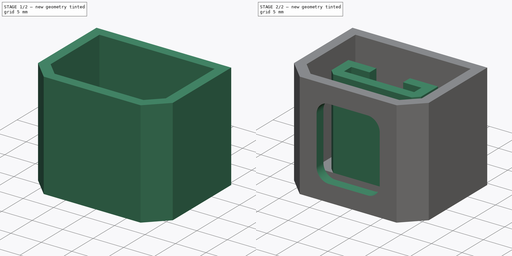
[diagram: build sequence overview — one tinted view per stage of 2, left to right]
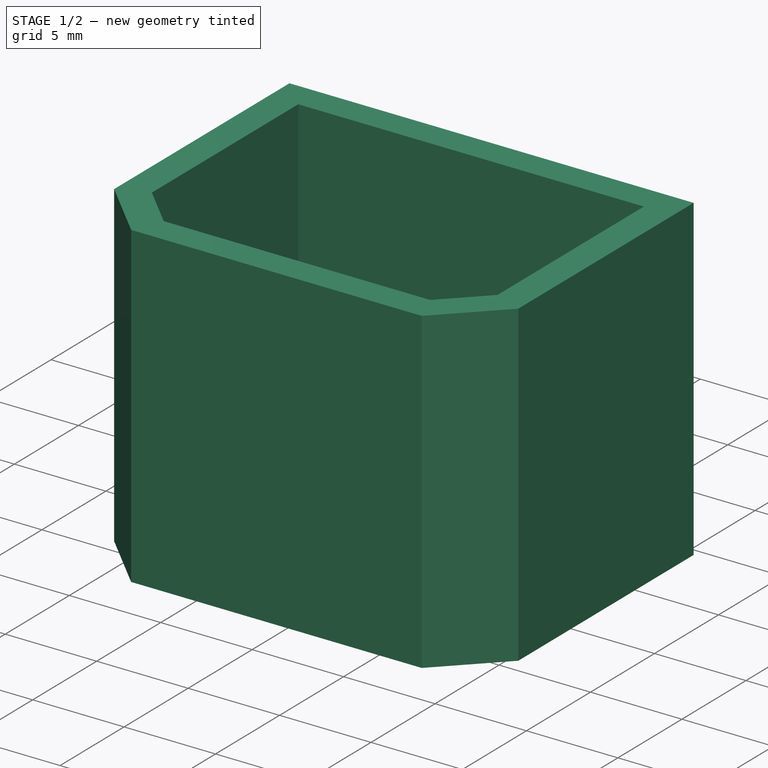
[diagram: stage 1 of 2 — iso view after this stage's code; geometry added in this stage tinted green]
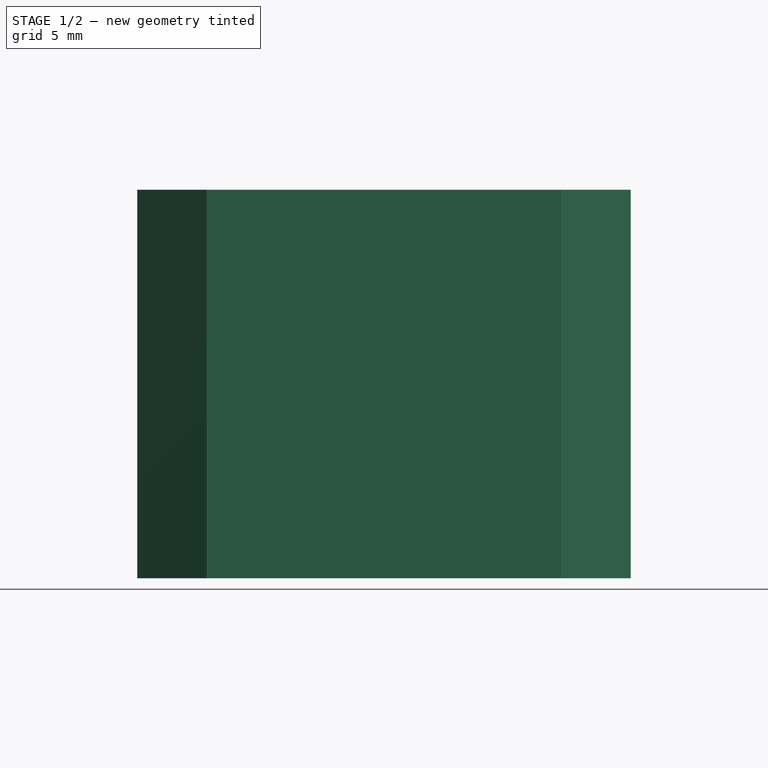
[diagram: stage 1 of 2 — front view after this stage's code; geometry added in this stage tinted green]
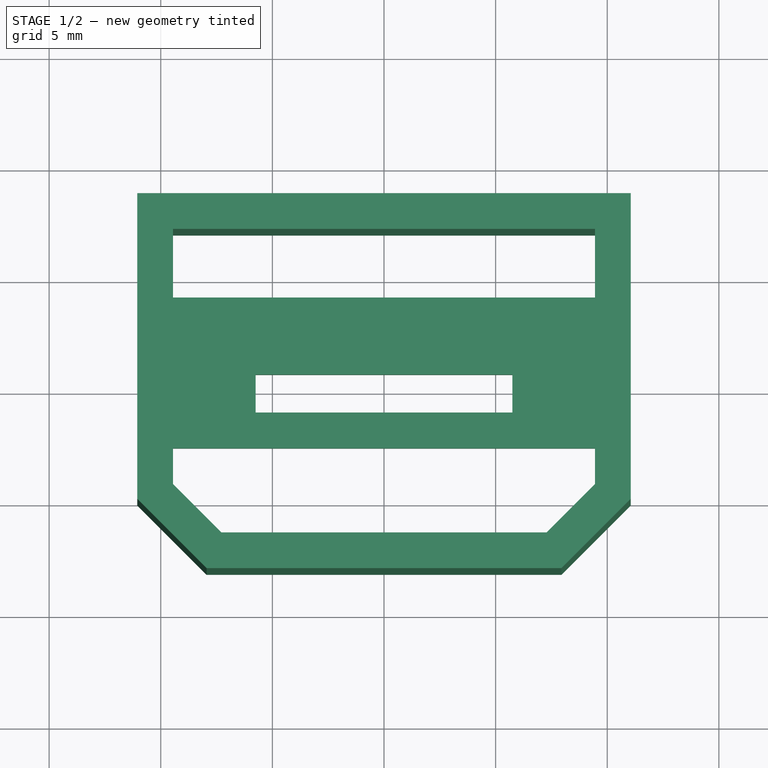
[diagram: stage 1 of 2 — top view after this stage's code; geometry added in this stage tinted green]
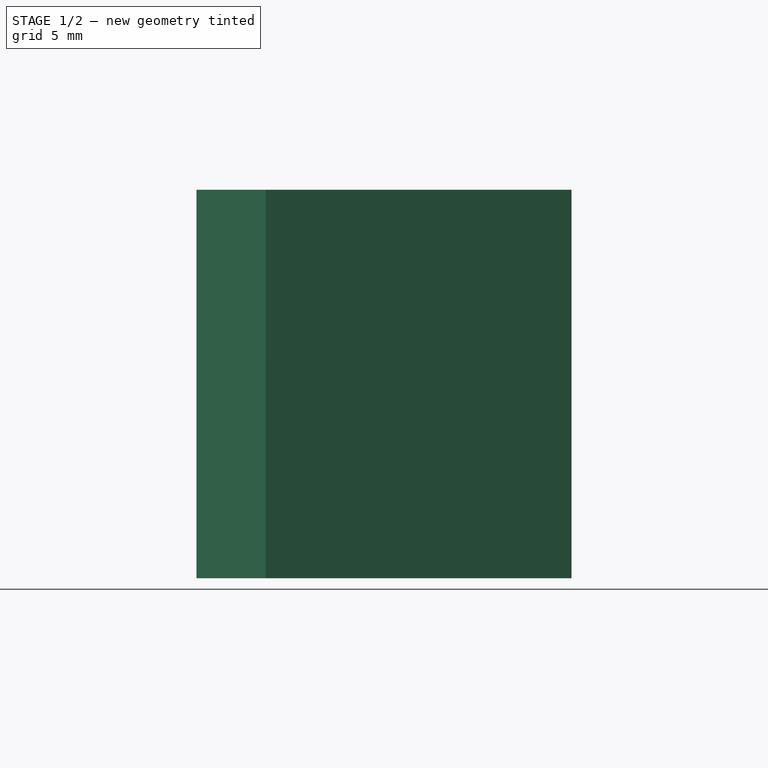
[diagram: stage 1 of 2 — right view after this stage's code; geometry added in this stage tinted green]
FCSTD DOCUMENT  (FreeCAD 0.19R24366 (Git))
Label: Buckle
License: All rights reserved
LicenseURL: http://en.wikipedia.org/wiki/All_rights_reserved
objects: Sketcher::SketchObject×5, PartDesign::Pad×3, PartDesign::Body×2, Spreadsheet::Sheet×1, Part::Feature×1, Part::Refine×1, PartDesign::ShapeBinder×1, PartDesign::Pocket×1, App::Part×1
note: 18 computed .brp shape members not serialized (recipe doc carries the construction recipe); baked Part::Feature solids carry a one-line shape summary decoded from their .brp

FEATURE [Sketcher::SketchObject] Sketch  label="Template_XY"
  FullyConstrained = true
  MapMode = 5
  Support = -> [XY_Plane001]
  expr: Constraints[274] = <<Spreadsheet>>.Tolerance
  expr: Constraints[129] = <<Spreadsheet>>.Tolerance
  expr: Constraints[262] = <<Spreadsheet>>.KeyThickness
  expr: Constraints[263] = <<Spreadsheet>>.Tolerance
  expr: Constraints[247] = <<Spreadsheet>>.Tolerance * 2
  expr: Constraints[260] = <<Spreadsheet>>.LatchHoleWidth
  expr: Constraints[264] = <<Spreadsheet>>.LatchPlay
  expr: Constraints[177] = <<Spreadsheet>>.WallThickess
  expr: Constraints[266] = <<Spreadsheet>>.LatchPlay - <<Spreadsheet>>.Tolerance
  expr: Constraints[122] = <<Spreadsheet>>.LatchHoleWidth - <<Spreadsheet>>.Tolerance * 2
  sketch-geometry (95):
    g0: LineSegment StartX=-6.41274 StartY=-2.45 StartZ=0 EndX=6.41274 EndY=-2.45 EndZ=0
    g1: LineSegment StartX=6.41274 StartY=-2.45 StartZ=0 EndX=7.35 EndY=-1.51274 EndZ=0
    g2: LineSegment StartX=7.35 StartY=-1.51274 StartZ=0 EndX=7.35 EndY=2.45 EndZ=0
    g3: LineSegment StartX=7.35 StartY=2.45 StartZ=0 EndX=2.75 EndY=2.45 EndZ=0
    g4: LineSegment StartX=2.75 StartY=2.45 StartZ=0 EndX=2.75 EndY=0.85 EndZ=0
    g5: LineSegment StartX=2.75 StartY=0.85 StartZ=0 EndX=5.75 EndY=0.85 EndZ=0
    g6: LineSegment StartX=5.75 StartY=0.85 StartZ=0 EndX=5.75 EndY=-0.85 EndZ=0
    g7: LineSegment StartX=5.75 StartY=-0.85 StartZ=0 EndX=-5.75 EndY=-0.85 EndZ=0
    g8: LineSegment StartX=-5.75 StartY=-0.85 StartZ=0 EndX=-5.75 EndY=0.85 EndZ=0
    g9: LineSegment StartX=-5.75 StartY=0.85 StartZ=0 EndX=-2.75 EndY=0.85 EndZ=0
    g10: LineSegment StartX=-2.75 StartY=0.85 StartZ=0 EndX=-2.75 EndY=2.45 EndZ=0
    g11: LineSegment StartX=-2.75 StartY=2.45 StartZ=0 EndX=-7.35 EndY=2.45 EndZ=0
    g12: LineSegment StartX=-7.35 StartY=2.45 StartZ=0 EndX=-7.35 EndY=-1.51274 EndZ=0
    g13: LineSegment StartX=-7.35 StartY=-1.51274 StartZ=0 EndX=-6.41274 EndY=-2.45 EndZ=0
    g14: LineSegment StartX=-5.75 StartY=-0.85 StartZ=0 EndX=-5.75 EndY=-2.45 EndZ=0
    g15: LineSegment StartX=-2.75 StartY=2.45 StartZ=0 EndX=2.75 EndY=2.45 EndZ=0
    g16: LineSegment StartX=-5.75 StartY=-0.85 StartZ=0 EndX=-6.88137 EndY=-1.98137 EndZ=0
    g17: LineSegment StartX=0 StartY=7.09835 StartZ=0 EndX=0 EndY=-6.5 EndZ=0
    g18: LineSegment StartX=-5.5 StartY=0.6 StartZ=0 EndX=5.5 EndY=0.6 EndZ=0
    g19: LineSegment StartX=5.5 StartY=0.6 StartZ=0 EndX=5.5 EndY=-0.6 EndZ=0
    g20: LineSegment StartX=5.5 StartY=-0.6 StartZ=0 EndX=-5.5 EndY=-0.6 EndZ=0
    g21: LineSegment StartX=-5.5 StartY=-0.6 StartZ=0 EndX=-5.5 EndY=0.6 EndZ=0
    g22: LineSegment StartX=-5.5 StartY=0.6 StartZ=0 EndX=-5.5 EndY=0.85 EndZ=0
    g23: LineSegment StartX=-5.5 StartY=-0.6 StartZ=0 EndX=-5.75 EndY=-0.6 EndZ=0
    g24: LineSegment StartX=-9.45 StartY=7.09835 StartZ=0 EndX=9.45 EndY=7.09835 EndZ=0
    g25: LineSegment StartX=9.45 StartY=7.09835 StartZ=0 EndX=9.45 EndY=-4.33259 EndZ=0
    g26: LineSegment StartX=7.28259 StartY=-6.5 StartZ=0 EndX=-7.28259 EndY=-6.5 EndZ=0
    g27: LineSegment StartX=-9.45 StartY=-4.33259 StartZ=0 EndX=-9.45 EndY=7.09835 EndZ=0
    g28: LineSegment StartX=-7.6 StartY=2.7 StartZ=0 EndX=7.6 EndY=2.7 EndZ=0
    g29: LineSegment StartX=7.6 StartY=2.7 StartZ=0 EndX=7.6 EndY=-3.5663 EndZ=0
    g30: LineSegment StartX=6.5163 StartY=-4.65 StartZ=0 EndX=-6.5163 EndY=-4.65 EndZ=0
    g31: LineSegment StartX=-7.6 StartY=-3.5663 StartZ=0 EndX=-7.6 EndY=2.7 EndZ=0
    g32: LineSegment StartX=-5.75 StartY=-2.45 StartZ=0 EndX=-5.75 EndY=-4.65 EndZ=0
    g33: LineSegment StartX=-9.2 StartY=4.3 StartZ=0 EndX=-0.6 EndY=4.3 EndZ=0
    g34: LineSegment StartX=9.2 StartY=4.3 StartZ=0 EndX=9.2 EndY=-4.22904 EndZ=0
    g35: LineSegment StartX=7.17904 StartY=-6.25 StartZ=0 EndX=-7.17904 EndY=-6.25 EndZ=0
    g36: LineSegment StartX=-9.2 StartY=-4.22904 StartZ=0 EndX=-9.2 EndY=4.3 EndZ=0
    g37: LineSegment StartX=-7.6 StartY=2.7 StartZ=0 EndX=-7.6 EndY=4.3 EndZ=0
    g38: LineSegment StartX=6.5163 StartY=-4.65 StartZ=0 EndX=7.6 EndY=-3.5663 EndZ=0
    g39: LineSegment StartX=7.17904 StartY=-6.25 StartZ=0 EndX=9.2 EndY=-4.22904 EndZ=0
    g40: LineSegment StartX=-9.2 StartY=-4.22904 StartZ=0 EndX=-7.17904 EndY=-6.25 EndZ=0
    g41: LineSegment StartX=-7.6 StartY=-3.5663 StartZ=0 EndX=-9.2 EndY=-3.5663 EndZ=0
    g42: LineSegment StartX=-6.5163 StartY=-4.65 StartZ=0 EndX=-6.5163 EndY=-6.25 EndZ=0
    g43: LineSegment StartX=7.6 StartY=-3.5663 StartZ=0 EndX=9.2 EndY=-3.5663 EndZ=0
    g44: LineSegment StartX=-9.45 StartY=-4.33259 StartZ=0 EndX=-7.28259 EndY=-6.5 EndZ=0
    g45: LineSegment StartX=7.28259 StartY=-6.5 StartZ=0 EndX=9.45 EndY=-4.33259 EndZ=0
    g46: LineSegment StartX=-9.2 StartY=4.3 StartZ=0 EndX=-9.45 EndY=4.3 EndZ=0
    g47: LineSegment StartX=9.2 StartY=4.3 StartZ=0 EndX=9.45 EndY=4.3 EndZ=0
    g48: ArcOfCircle CenterX=0 CenterY=17.2642 CenterZ=0 NormalX=0 NormalY=0 NormalZ=1 AngleXU=0 Radius=12.5581 StartAngle=4.11965 EndAngle=5.30513
    g49: LineSegment StartX=-7.01537 StartY=6.84835 StartZ=0 EndX=-7.25 EndY=6.5 EndZ=0
    g50: LineSegment StartX=7.01537 StartY=6.84835 StartZ=0 EndX=7.25 EndY=6.5 EndZ=0
    g51: ArcOfCircle CenterX=0 CenterY=17.2642 CenterZ=0 NormalX=0 NormalY=0 NormalZ=1 AngleXU=0 Radius=12.9781 StartAngle=4.11965 EndAngle=4.66614
    g52: ArcOfCircle CenterX=0 CenterY=17.2642 CenterZ=0 NormalX=0 NormalY=0 NormalZ=1 AngleXU=0 Radius=12.9781 StartAngle=4.75864 EndAngle=5.30513
    g53: ArcOfCircle CenterX=0 CenterY=17.2642 CenterZ=0 NormalX=0 NormalY=0 NormalZ=1 AngleXU=0 Radius=12.9781 StartAngle=4.66614 EndAngle=4.75864
    g54: LineSegment StartX=-6.5163 StartY=-6.25 StartZ=0 EndX=-6.5163 EndY=-6.5 EndZ=0
    g55: LineSegment StartX=-7.01537 StartY=6.84835 StartZ=0 EndX=7.01537 EndY=6.84835 EndZ=0
    g56: LineSegment StartX=-2.25 StartY=2.7 StartZ=0 EndX=-2.25 EndY=-0.6 EndZ=0
    g57: LineSegment StartX=2.25 StartY=2.7 StartZ=0 EndX=2.25 EndY=-0.6 EndZ=0
    g58: LineSegment StartX=0.6 StartY=4.3 StartZ=0 EndX=9.2 EndY=4.3 EndZ=0
    g59: LineSegment StartX=-7.01537 StartY=6.84835 StartZ=0 EndX=-7.01537 EndY=7.09835 EndZ=0
    g60: LineSegment StartX=-7.25 StartY=6.5 StartZ=0 EndX=-7.25 EndY=4.3 EndZ=0
    g61: LineSegment StartX=-4.92904 StartY=-6.25 StartZ=0 EndX=-4.92904 EndY=-8.2 EndZ=0
    g62: LineSegment StartX=-4.92904 StartY=-8.2 StartZ=0 EndX=4.92904 EndY=-8.2 EndZ=0
    g63: LineSegment StartX=4.92904 StartY=-8.2 StartZ=0 EndX=4.92904 EndY=-6.25 EndZ=0
    g64: LineSegment StartX=-2.75 StartY=2.45 StartZ=0 EndX=-2.75 EndY=4.3 EndZ=0
    g65: LineSegment StartX=-7.35 StartY=2.45 StartZ=0 EndX=-7.6 EndY=2.45 EndZ=0
    g66: LineSegment StartX=5.5 StartY=-0.6 StartZ=0 EndX=5.5 EndY=-0.85 EndZ=0
    g67: LineSegment StartX=5.5 StartY=0.6 StartZ=0 EndX=5.75 EndY=0.6 EndZ=0
    g68: LineSegment StartX=-5.75 StartY=-0.85 StartZ=0 EndX=-7.35 EndY=-0.85 EndZ=0
    g69: LineSegment StartX=7.35 StartY=2.45 StartZ=0 EndX=7.6 EndY=2.45 EndZ=0
    g70: LineSegment StartX=2.75 StartY=2.45 StartZ=0 EndX=2.75 EndY=2.7 EndZ=0
    g71: LineSegment StartX=-7.6 StartY=-1.6163 StartZ=0 EndX=-6.5163 EndY=-2.7 EndZ=0
    g72: LineSegment StartX=-7.35 StartY=-1.51274 StartZ=0 EndX=-7.52678 EndY=-1.68952 EndZ=0
    g73: LineSegment StartX=-7.6 StartY=-3.5663 StartZ=0 EndX=-6.5163 EndY=-4.65 EndZ=0
    g74: LineSegment StartX=-7.05815 StartY=-4.10815 StartZ=0 EndX=-8.18952 EndY=-5.23952 EndZ=0
    g75: LineSegment StartX=5.75 StartY=0.85 StartZ=0 EndX=7.35 EndY=0.85 EndZ=0
    g76: LineSegment StartX=-2.75 StartY=0.85 StartZ=0 EndX=2.75 EndY=0.85 EndZ=0
    g77: LineSegment StartX=-8.18952 StartY=-5.23952 StartZ=0 EndX=-8.3663 EndY=-5.4163 EndZ=0
    g78: LineSegment StartX=-11.05 StartY=8.69835 StartZ=0 EndX=11.05 EndY=8.69835 EndZ=0
    g79: LineSegment StartX=11.05 StartY=8.69835 StartZ=0 EndX=11.05 EndY=-4.99533 EndZ=0
    g80: LineSegment StartX=11.05 StartY=-4.99533 StartZ=0 EndX=7.94533 EndY=-8.1 EndZ=0
    g81: LineSegment StartX=7.94533 StartY=-8.1 StartZ=0 EndX=-7.94533 EndY=-8.1 EndZ=0
    g82: LineSegment StartX=-7.94533 StartY=-8.1 StartZ=0 EndX=-11.05 EndY=-4.99533 EndZ=0
    g83: LineSegment StartX=-11.05 StartY=-4.99533 StartZ=0 EndX=-11.05 EndY=8.69835 EndZ=0
    g84: LineSegment StartX=-9.45 StartY=7.09835 StartZ=0 EndX=-11.05 EndY=7.09835 EndZ=0
    g85: LineSegment StartX=-9.45 StartY=7.09835 StartZ=0 EndX=-9.45 EndY=8.69835 EndZ=0
    g86: LineSegment StartX=9.45 StartY=-4.33259 StartZ=0 EndX=11.05 EndY=-4.33259 EndZ=0
    g87: LineSegment StartX=-8.3663 StartY=-5.4163 StartZ=0 EndX=-9.49767 EndY=-6.54767 EndZ=0
    g88: LineSegment StartX=-7.25 StartY=6.5 StartZ=0 EndX=-9.45 EndY=6.5 EndZ=0
    g89: LineSegment StartX=-2.5 StartY=2.45 StartZ=0 EndX=-2.5 EndY=0.85 EndZ=0
    g90: LineSegment StartX=2.5 StartY=2.45 StartZ=0 EndX=2.5 EndY=0.85 EndZ=0
    g91: LineSegment StartX=-5.17904 StartY=-6.5 StartZ=0 EndX=-5.17904 EndY=-8.1 EndZ=0
    g92: LineSegment StartX=5.17904 StartY=-6.5 StartZ=0 EndX=5.17904 EndY=-8.1 EndZ=0
    g93: GeomPoint X=0 Y=0 Z=0
    g94: LineSegment StartX=11.05 StartY=0 StartZ=0 EndX=-11.05 EndY=0 EndZ=0
  constraints (284):
    c: Horizontal(g0)
    c: Coincident(g0,g1)
    c: Coincident(g1,g2)
    c: Vertical(g2)
    c: Coincident(g2,g3)
    c: Horizontal(g3)
    c: Coincident(g3,g4)
    c: Vertical(g4)
    c: Coincident(g4,g5)
    c: Horizontal(g5)
    c: Coincident(g5,g6)
    c: Vertical(g6)
    c: Coincident(g6,g7)
    c: Horizontal(g7)
    c: Coincident(g7,g8)
    c: Coincident(g8,g9)
    c: Horizontal(g9)
    c: Coincident(g9,g10)
    c: Vertical(g10)
    c: Coincident(g10,g11)
    c: Horizontal(g11)
    c: Coincident(g11,g12)
    c: Vertical(g12)
    c: Coincident(g12,g13)
    c: Vertical(g8)
    c: Coincident(g14,g7)
    c: PointOnObject(g14,g0)
    c: Vertical(g14)
    c: Coincident(g15,g10)
    c: Coincident(g15,g3)
    c: Horizontal(g15)
    c: Coincident(g16,g7)
    c: Perpendicular(g13,g16)
    c: Symmetric(g12,g0,g16)
    c: Coincident(g18,g19)
    c: Coincident(g19,g20)
    c: Coincident(g20,g21)
    c: Coincident(g21,g18)
    c: Horizontal(g18)
    c: Horizontal(g20)
    c: Vertical(g19)
    c: Vertical(g21)
    c: Coincident(g22,g18)
    c: PointOnObject(g22,g9)
    c: Vertical(g22)
    c: Coincident(g23,g20)
    c: PointOnObject(g23,g8)
    c: Horizontal(g23)
    c: Coincident(g24,g25)
    c: Coincident(g27,g24)
    c: Horizontal(g24)
    c: Horizontal(g26)
    c: Vertical(g25)
    c: Vertical(g27)
    c: Coincident(g28,g29)
    c: Coincident(g31,g28)
    c: Horizontal(g28)
    c: Horizontal(g30)
    c: Vertical(g29)
    c: Vertical(g31)
    c: Coincident(g32,g14)
    c: PointOnObject(g32,g30)
    c: Vertical(g32)
    c: Coincident(g58,g34)
    c: Coincident(g36,g33)
    c: Horizontal(g33)
    c: Horizontal(g35)
    c: Vertical(g34)
    c: Vertical(g36)
    c: Coincident(g37,g28)
    c: PointOnObject(g37,g33)
    c: Vertical(g37)
    c: Coincident(g38,g30)
    c: Coincident(g38,g29)
    c: Parallel(g38,g1)
    c: Coincident(g39,g35)
    c: Coincident(g39,g34)
    c: Coincident(g40,g36)
    c: Coincident(g40,g35)
    c: Parallel(g38,g39)
    c: Coincident(g41,g31)
    c: PointOnObject(g41,g36)
    c: Horizontal(g41)
    c: Coincident(g42,g30)
    c: PointOnObject(g42,g35)
    c: Vertical(g42)
    c: Coincident(g43,g29)
    c: PointOnObject(g43,g34)
    c: Horizontal(g43)
    c: Coincident(g44,g27)
    c: Coincident(g44,g26)
    c: Coincident(g45,g26)
    c: Coincident(g45,g25)
    c: Coincident(g13,g0)
    c: Parallel(g45,g39)
    c: Parallel(g44,g40)
    c: Coincident(g46,g33)
    c: PointOnObject(g46,g27)
    c: Horizontal(g46)
    c: Coincident(g47,g58)
    c: PointOnObject(g47,g25)
    c: Horizontal(g47)
    c: PointOnObject(g17,g26)
    c: Symmetric(g24,g24,g17)
    c: Coincident(g49,g48)
    c: Coincident(g50,g48)
    c: PointOnObject(g48,g17)
    c: Coincident(g51,g48)
    c: Coincident(g51,g49)
    c: Coincident(g52,g50)
    c: Coincident(g51,g52)
    c: Coincident(g53,g48)
    c: Coincident(g53,g51)
    c: Coincident(g53,g52)
    c: PointOnObject(g54,g26)
    c: Vertical(g54)
    c: Coincident(g55,g48)
    c: Coincident(g55,g48)
    c: Horizontal(g55)
    c: PointOnObject(g56,g28)
    c: Vertical(g56)
    c: Vertical(g57)
    c: DistanceX(g56,g57) = 4.5
    c: Coincident(g58,g52)
    c: Tangent(g33,g58)
    c: Coincident(g33,g51)
    c: Coincident(g59,g48)
    c: PointOnObject(g59,g24)
    c: Vertical(g59)
    c: DistanceY(g59,g59) = 0.25
    c: PointOnObject(g48,g49)
    c: PointOnObject(g48,g50)
    c: Coincident(g42,g54)
    c: Coincident(g60,g49)
    c: PointOnObject(g60,g33)
    c: Vertical(g60)
    c: Distance(g50) = 0.42
    c: Vertical(g61)
    c: Coincident(g61,g62)
    c: Horizontal(g62)
    c: Coincident(g62,g63)
    c: Vertical(g63)
    c: PointOnObject(g61,g35)
    c: Coincident(g64,g10)
    c: PointOnObject(g64,g33)
    c: Vertical(g64)
    c: Coincident(g65,g11)
    c: PointOnObject(g65,g31)
    c: Horizontal(g65)
    c: Coincident(g66,g19)
    c: PointOnObject(g66,g7)
    c: Vertical(g66)
    c: Coincident(g67,g18)
    c: Horizontal(g67)
    c: PointOnObject(g67,g6)
    c: Symmetric(g18,g18,g17)
    c: Parallel(g1,g16)
    c: Coincident(g68,g7)
    c: PointOnObject(g68,g12)
    c: Horizontal(g68)
    c: Coincident(g69,g2)
    c: PointOnObject(g69,g29)
    c: Horizontal(g69)
    c: Coincident(g70,g3)
    c: PointOnObject(g70,g28)
    c: Vertical(g70)
    c: Symmetric(g71,g71,g16)
    c: PointOnObject(g71,g31)
    c: Coincident(g72,g12)
    c: PointOnObject(g72,g71)
    c: Perpendicular(g71,g72)
    c: Coincident(g73,g31)
    c: Coincident(g73,g30)
    c: Parallel(g73,g13)
    c: PointOnObject(g74,g40)
    c: Perpendicular(g40,g74)
    c: Perpendicular(g73,g74)
    c: DistanceY(g10,g10) = 1.6
    c: Coincident(g75,g5)
    c: PointOnObject(g75,g2)
    c: Horizontal(g75)
    c: Coincident(g76,g9)
    c: Coincident(g76,g4)
    c: Horizontal(g76)
    c: Symmetric(g31,g30,g74)
    c: Coincident(g77,g74)
    c: PointOnObject(g77,g44)
    c: Perpendicular(g44,g77)
    c: Symmetric(g63,g61,g17)
    c: PointOnObject(g56,g20)
    c: PointOnObject(g57,g20)
    c: Symmetric(g56,g57,g17)
    c: Horizontal(g78)
    c: Coincident(g78,g79)
    c: Vertical(g79)
    c: Coincident(g79,g80)
    c: Coincident(g80,g81)
    c: Horizontal(g81)
    c: Coincident(g81,g82)
    c: Coincident(g82,g83)
    c: Coincident(g83,g78)
    c: Vertical(g83)
    c: Coincident(g84,g24)
    c: PointOnObject(g84,g83)
    c: Horizontal(g84)
    c: Coincident(g85,g24)
    c: PointOnObject(g85,g78)
    c: Vertical(g85)
    c: Coincident(g86,g25)
    c: PointOnObject(g86,g79)
    c: Horizontal(g86)
    c: Parallel(g82,g44)
    c: Parallel(g80,g45)
    c: DistanceY(g81,g26) = 1.6
    c: Coincident(g87,g77)
    c: PointOnObject(g87,g82)
    c: Perpendicular(g82,g87)
    c: Equal(g11,g3)
    c: Equal(g68,g16)
    c: Equal(g16,g14)
    c: Equal(g14,g75)
    c: Equal(g75,g43)
    c: Equal(g43,g42)
    c: Equal(g42,g74)
    c: Equal(g74,g41)
    c: Equal(g41,g37)
    c: Equal(g37,g86)
    c: Equal(g86,g87)
    c: Equal(g87,g84)
    c: Equal(g84,g85)
    c: Equal(g22,g23)
    c: Equal(g23,g66)
    c: Equal(g66,g67)
    c: Equal(g67,g69)
    c: Equal(g69,g70)
    c: Equal(g70,g65)
    c: Equal(g65,g72)
    c: Equal(g72,g47)
    c: Equal(g46,g77)
    c: Equal(g77,g54)
    c: Equal(g13,g1)
    c: Equal(g71,g73)
    c: Equal(g73,g38)
    c: Equal(g32,g60)
    c: Equal(g40,g39)
    c: Equal(g44,g45)
    c: Equal(g82,g80)
    c: DistanceX(g10,g56) = 0.5
    c: DistanceX(g9,g9) = 3
    c: DistanceX(g33,g52) = 1.2
    c: Coincident(g88,g49)
    c: PointOnObject(g88,g27)
    c: Horizontal(g88)
    c: Equal(g60,g88)
    c: PointOnObject(g89,g15)
    c: PointOnObject(g89,g76)
    c: Vertical(g89)
    c: PointOnObject(g90,g76)
    c: Vertical(g90)
    c: Symmetric(g89,g90,g17)
    c: DistanceX(g89,g90) = 5
    c: Equal(g89,g68)
    c: DistanceY(g21,g21) = 1.2
    c: DistanceY(g22,g22) = 0.25
    c: DistanceY(g46,g88) = 2.2
    c: DistanceX(g18,g18) = 11  'KeyWidth'
    c: DistanceY(g61,g61) = 1.95
    c: DistanceX(g81,g81) = 15.8907  'FacadeWidth'
    c: PointOnObject(g91,g26)
    c: PointOnObject(g91,g81)
    c: Vertical(g91)
    c: PointOnObject(g92,g81)
    c: Vertical(g92)
    c: DistanceX(g35,g91) = 2
    c: DistanceX(g91,g61) = 0.25
    c: Symmetric(g91,g92,g17)
    c: DistanceX(g81,g91) = 2.7663  'FrontHoleOffset'
    c: Symmetric(g20,g18,g93)
    c: PointOnObject(g94,g83)
    c: Horizontal(g94)
    c: PointOnObject(g93,g94)
    c: PointOnObject(g94,g79)
    c: Coincident(g93,g-1)  '__ANCHOR__'
    c: DistanceY(g26,g94) = 6.5  'FacadeOffset'
FEATURE [PartDesign::Body] Body  label="Template"
  Group = -> [Sketch]
  Origin = -> Origin001
FEATURE [Spreadsheet::Sheet] Spreadsheet
  cells = B2=Tolerance; C2(Tolerance)==0.25mm; B3=WallThickess; C3(WallThickess)==1.6mm; B4=LatchHoleWidth; C4(LatchHoleWidth)==5mm; B5=KeyThickness; C5(KeyThickness)==1.2mm; B6=LatchPlay; C6(LatchPlay)==2.2mm
FEATURE [Part::Feature] ___Case___One_Key001_solid  label="___Case___One_Key001 (Solid)"
  shape: bbox 36 x 20.42 x 40 mm, 644 faces (baked)
FEATURE [Part::Refine] ___Case___One_Key001_solid001  label="___Case___One_Key001 (Solid)001"
  Source = -> ___Case___One_Key001_solid
FEATURE [PartDesign::ShapeBinder] ShapeBinder
  Support = -> [Sketch]
  TraceSupport = false
FEATURE [Sketcher::SketchObject] Sketch001  label="BS_Base"
  ExternalGeometry = -> [ShapeBinder]
  FullyConstrained = true
  MapMode = 5
  Support = -> [XY_Plane002]
  sketch-geometry (20):
    g0: LineSegment StartX=-11.05 StartY=8.69835 StartZ=0 EndX=11.05 EndY=8.69835 EndZ=0
    g1: LineSegment StartX=11.05 StartY=8.69835 StartZ=0 EndX=11.05 EndY=-4.99533 EndZ=0
    g2: LineSegment StartX=11.05 StartY=-4.99533 StartZ=0 EndX=7.94533 EndY=-8.1 EndZ=0
    g3: LineSegment StartX=7.94533 StartY=-8.1 StartZ=0 EndX=-7.94533 EndY=-8.1 EndZ=0
    g4: LineSegment StartX=-7.94533 StartY=-8.1 StartZ=0 EndX=-11.05 EndY=-4.99533 EndZ=0
    g5: LineSegment StartX=-11.05 StartY=-4.99533 StartZ=0 EndX=-11.05 EndY=8.69835 EndZ=0
    g6: LineSegment StartX=-9.45 StartY=-4.33259 StartZ=0 EndX=-7.28259 EndY=-6.5 EndZ=0
    g7: LineSegment StartX=-7.28259 StartY=-6.5 StartZ=0 EndX=7.28259 EndY=-6.5 EndZ=0
    g8: LineSegment StartX=7.28259 StartY=-6.5 StartZ=0 EndX=9.45 EndY=-4.33259 EndZ=0
    g9: LineSegment StartX=9.45 StartY=-4.33259 StartZ=0 EndX=9.45 EndY=-2.45 EndZ=0
    g10: LineSegment StartX=9.45 StartY=-2.45 StartZ=0 EndX=-9.45 EndY=-2.45 EndZ=0
    g11: LineSegment StartX=-9.45 StartY=-2.45 StartZ=0 EndX=-9.45 EndY=-4.33259 EndZ=0
    g12: LineSegment StartX=-5.75 StartY=0.85 StartZ=0 EndX=5.75 EndY=0.85 EndZ=0
    g13: LineSegment StartX=5.75 StartY=0.85 StartZ=0 EndX=5.75 EndY=-0.85 EndZ=0
    g14: LineSegment StartX=5.75 StartY=-0.85 StartZ=0 EndX=-5.75 EndY=-0.85 EndZ=0
    g15: LineSegment StartX=-5.75 StartY=-0.85 StartZ=0 EndX=-5.75 EndY=0.85 EndZ=0
    g16: LineSegment StartX=-9.45 StartY=7.09835 StartZ=0 EndX=9.45 EndY=7.09835 EndZ=0
    g17: LineSegment StartX=9.45 StartY=7.09835 StartZ=0 EndX=9.45 EndY=4.3 EndZ=0
    g18: LineSegment StartX=9.45 StartY=4.3 StartZ=0 EndX=-9.45 EndY=4.3 EndZ=0
    g19: LineSegment StartX=-9.45 StartY=4.3 StartZ=0 EndX=-9.45 EndY=7.09835 EndZ=0
  constraints (46):
    c: Coincident(g-5,g0)
    c: Coincident(g0,g-5)
    c: Coincident(g0,g1)
    c: Coincident(g1,g-4)
    c: Coincident(g1,g2)
    c: Coincident(g2,g-4)
    c: Coincident(g2,g3)
    c: Coincident(g3,g4)
    c: Coincident(g4,g-3)
    c: Coincident(g4,g5)
    c: Coincident(g5,g0)
    c: Coincident(g3,g-3)
    c: Coincident(g-7,g6)
    c: Coincident(g6,g-7)
    c: Coincident(g6,g7)
    c: Coincident(g7,g-8)
    c: Coincident(g7,g8)
    c: Coincident(g8,g-8)
    c: Coincident(g8,g9)
    c: Vertical(g9)
    c: Coincident(g9,g10)
    c: Horizontal(g10)
    c: Coincident(g10,g11)
    c: Coincident(g11,g6)
    c: Vertical(g11)
    c: PointOnObject(g-6,g10)
    c: Coincident(g12,g13)
    c: Coincident(g13,g14)
    c: Coincident(g14,g15)
    c: Coincident(g15,g12)
    c: Horizontal(g12)
    c: Horizontal(g14)
    c: Vertical(g13)
    c: Vertical(g15)
    c: Coincident(g12,g-9)
    c: Coincident(g13,g-10)
    c: Coincident(g16,g17)
    c: Coincident(g17,g18)
    c: Coincident(g18,g19)
    c: Coincident(g19,g16)
    c: Horizontal(g18)
    c: Vertical(g17)
    c: Vertical(g19)
    c: Coincident(g16,g-11)
    c: Coincident(g16,g-11)
    c: PointOnObject(g-12,g18)
FEATURE [PartDesign::Pad] Pad  label="BS_Base_"
  Direction = (1,1,1)
  Length = 1.4
  Length2 = 100
  Profile = -> Sketch001
  Type = 0
FEATURE [Sketcher::SketchObject] Sketch002  label="BS_Walls"
  AttachmentOffset = pos=(0,0,1.4) rot=(0,0,1;0rad)
  ExternalGeometry = -> [ShapeBinder]
  FullyConstrained = true
  MapMode = 5
  Placement = pos=(0,0,1.4) rot=(0,0,1;0rad)
  Support = -> [XY_Plane002]
  expr: .AttachmentOffset.Base.z = <<BS_Base>>.AttachmentOffset.Base.z + <<BS_Base_>>.Length
  sketch-geometry (12):
    g0: LineSegment StartX=-11.05 StartY=8.69835 StartZ=0 EndX=11.05 EndY=8.69835 EndZ=0
    g1: LineSegment StartX=11.05 StartY=8.69835 StartZ=0 EndX=11.05 EndY=-4.99533 EndZ=0
    g2: LineSegment StartX=11.05 StartY=-4.99533 StartZ=0 EndX=7.94533 EndY=-8.1 EndZ=0
    g3: LineSegment StartX=7.94533 StartY=-8.1 StartZ=0 EndX=-7.94533 EndY=-8.1 EndZ=0
    g4: LineSegment StartX=-7.94533 StartY=-8.1 StartZ=0 EndX=-11.05 EndY=-4.99533 EndZ=0
    g5: LineSegment StartX=-11.05 StartY=-4.99533 StartZ=0 EndX=-11.05 EndY=8.69835 EndZ=0
    g6: LineSegment StartX=-9.45 StartY=7.09835 StartZ=0 EndX=9.45 EndY=7.09835 EndZ=0
    g7: LineSegment StartX=9.45 StartY=7.09835 StartZ=0 EndX=9.45 EndY=-4.33259 EndZ=0
    g8: LineSegment StartX=9.45 StartY=-4.33259 StartZ=0 EndX=7.28259 EndY=-6.5 EndZ=0
    g9: LineSegment StartX=7.28259 StartY=-6.5 StartZ=0 EndX=-7.28259 EndY=-6.5 EndZ=0
    g10: LineSegment StartX=-7.28259 StartY=-6.5 StartZ=0 EndX=-9.45 EndY=-4.33259 EndZ=0
    g11: LineSegment StartX=-9.45 StartY=-4.33259 StartZ=0 EndX=-9.45 EndY=7.09835 EndZ=0
  constraints (24):
    c: Coincident(g-3,g0)
    c: Coincident(g0,g-3)
    c: Coincident(g0,g1)
    c: Coincident(g1,g-5)
    c: Coincident(g1,g2)
    c: Coincident(g2,g-5)
    c: Coincident(g2,g3)
    c: Coincident(g3,g-4)
    c: Coincident(g3,g4)
    c: Coincident(g4,g-4)
    c: Coincident(g4,g5)
    c: Coincident(g5,g0)
    c: Coincident(g-8,g6)
    c: Coincident(g6,g-8)
    c: Coincident(g6,g7)
    c: Coincident(g7,g-6)
    c: Coincident(g7,g8)
    c: Coincident(g8,g-6)
    c: Coincident(g8,g9)
    c: Coincident(g9,g-7)
    c: Coincident(g9,g10)
    c: Coincident(g10,g-7)
    c: Coincident(g10,g11)
    c: Coincident(g11,g6)
FEATURE [PartDesign::Pad] Pad001  label="BS_Walls_"
  BaseFeature = -> Pad
  Direction = (1,1,1)
  Length = 16
  Length2 = 100
  Profile = -> Sketch002
  Type = 0
  expr: Length = ceil(Sketch.Constraints.FacadeWidth)
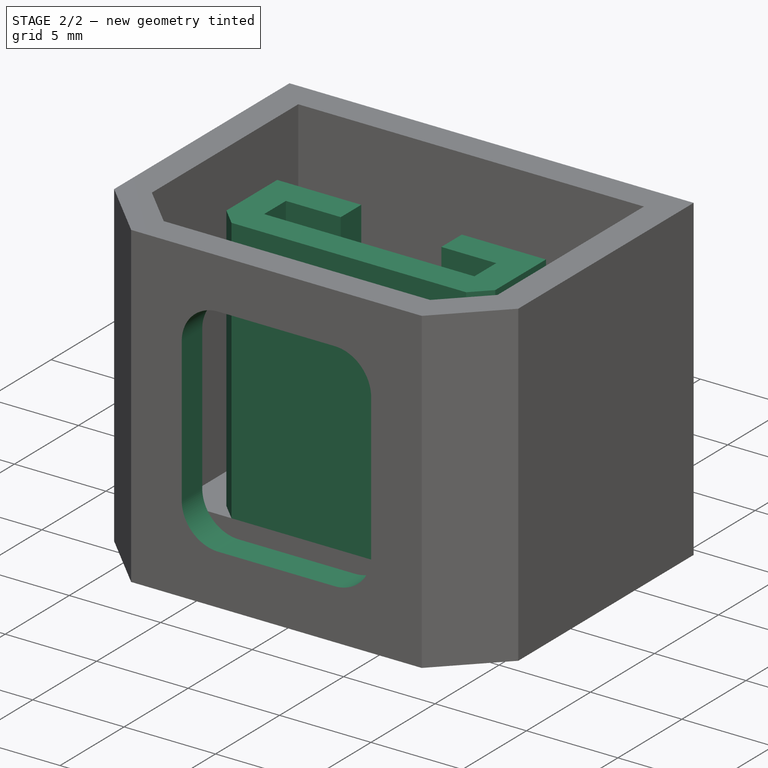
[diagram: stage 2 of 2 — iso view after this stage's code; geometry added in this stage tinted green]
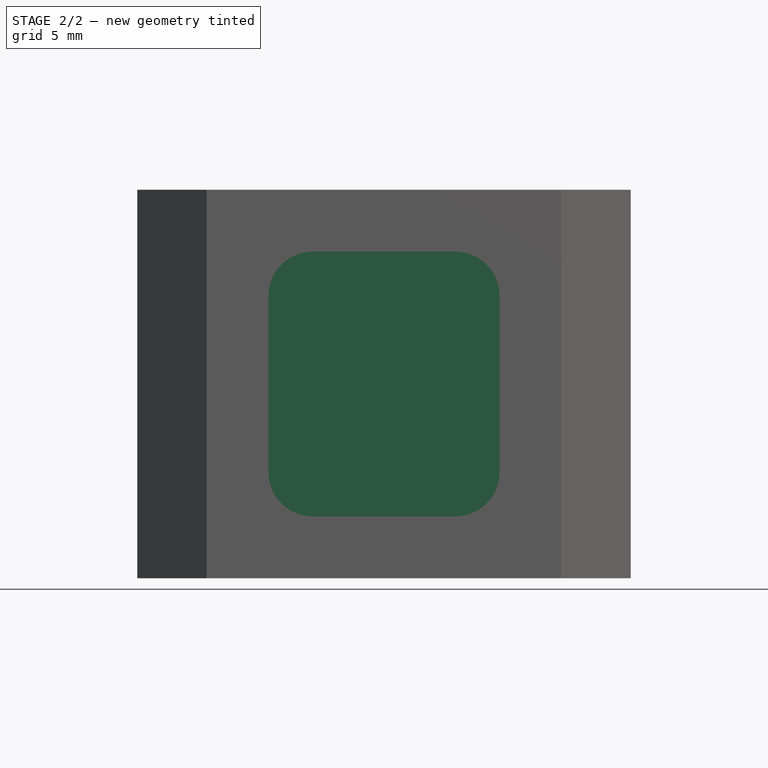
[diagram: stage 2 of 2 — front view after this stage's code; geometry added in this stage tinted green]
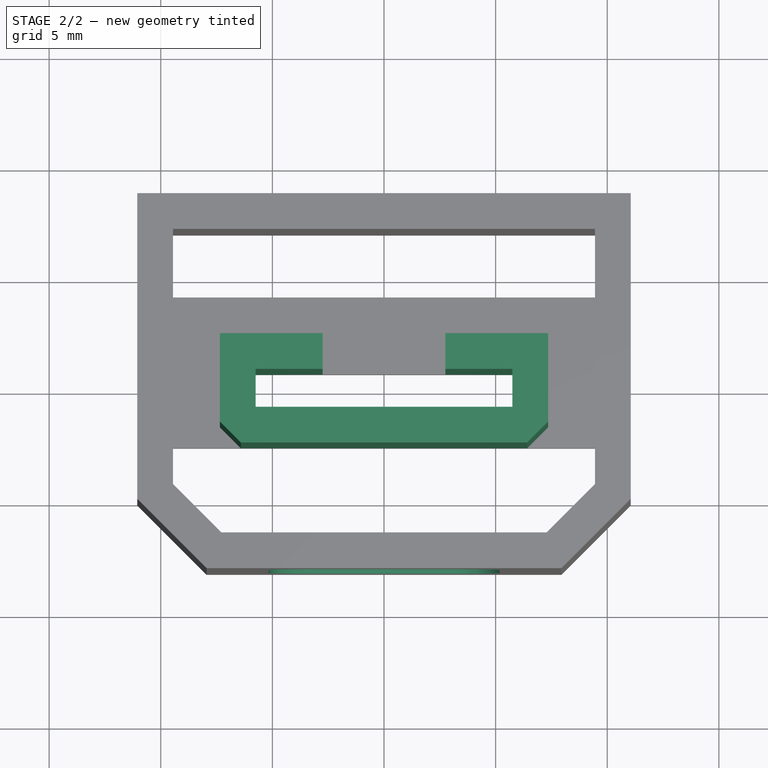
[diagram: stage 2 of 2 — top view after this stage's code; geometry added in this stage tinted green]
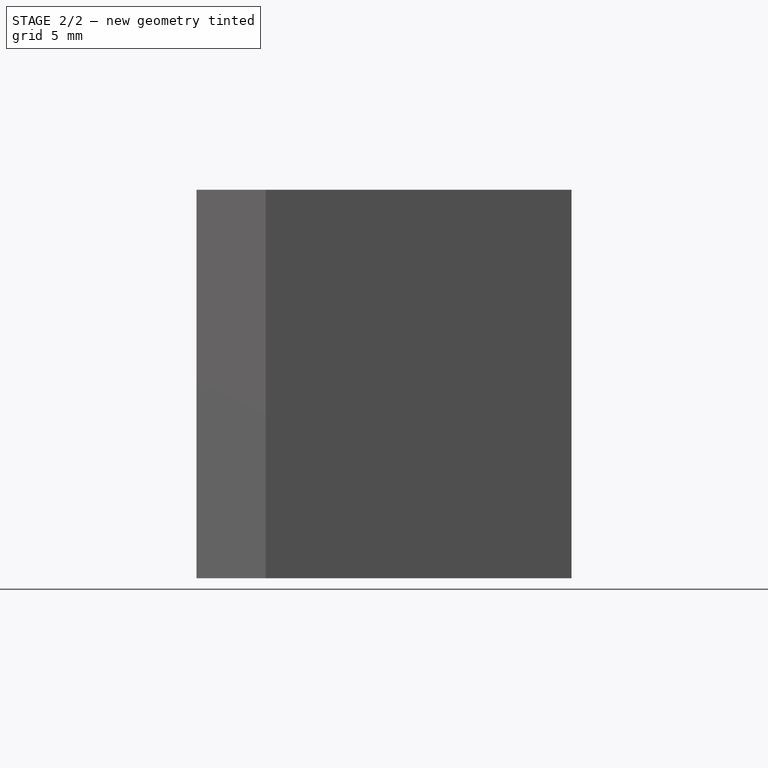
[diagram: stage 2 of 2 — right view after this stage's code; geometry added in this stage tinted green]
FEATURE [Sketcher::SketchObject] Sketch003  label="BS_Guide"
  AttachmentOffset = pos=(0,0,1.4) rot=(0,0,1;0rad)
  ExternalGeometry = -> [ShapeBinder]
  FullyConstrained = true
  MapMode = 5
  Placement = pos=(0,0,1.4) rot=(0,0,1;0rad)
  Support = -> [XY_Plane002]
  expr: .AttachmentOffset.Base.z = <<BS_Base>>.AttachmentOffset.Base.z + <<BS_Base_>>.Length
  sketch-geometry (14):
    g0: LineSegment StartX=-2.75 StartY=2.45 StartZ=0 EndX=-7.35 EndY=2.45 EndZ=0
    g1: LineSegment StartX=-7.35 StartY=2.45 StartZ=0 EndX=-7.35 EndY=-1.51274 EndZ=0
    g2: LineSegment StartX=-7.35 StartY=-1.51274 StartZ=0 EndX=-6.41274 EndY=-2.45 EndZ=0
    g3: LineSegment StartX=-6.41274 StartY=-2.45 StartZ=0 EndX=6.41274 EndY=-2.45 EndZ=0
    g4: LineSegment StartX=6.41274 StartY=-2.45 StartZ=0 EndX=7.35 EndY=-1.51274 EndZ=0
    g5: LineSegment StartX=7.35 StartY=-1.51274 StartZ=0 EndX=7.35 EndY=2.45 EndZ=0
    g6: LineSegment StartX=7.35 StartY=2.45 StartZ=0 EndX=2.75 EndY=2.45 EndZ=0
    g7: LineSegment StartX=2.75 StartY=2.45 StartZ=0 EndX=2.75 EndY=0.85 EndZ=0
    g8: LineSegment StartX=2.75 StartY=0.85 StartZ=0 EndX=5.75 EndY=0.85 EndZ=0
    g9: LineSegment StartX=5.75 StartY=0.85 StartZ=0 EndX=5.75 EndY=-0.85 EndZ=0
    g10: LineSegment StartX=5.75 StartY=-0.85 StartZ=0 EndX=-5.75 EndY=-0.85 EndZ=0
    g11: LineSegment StartX=-5.75 StartY=-0.85 StartZ=0 EndX=-5.75 EndY=0.85 EndZ=0
    g12: LineSegment StartX=-5.75 StartY=0.85 StartZ=0 EndX=-2.75 EndY=0.85 EndZ=0
    g13: LineSegment StartX=-2.75 StartY=0.85 StartZ=0 EndX=-2.75 EndY=2.45 EndZ=0
  constraints (28):
    c: Coincident(g-3,g0)
    c: Coincident(g0,g-6)
    c: Coincident(g0,g1)
    c: Coincident(g1,g-6)
    c: Coincident(g1,g2)
    c: Coincident(g2,g-7)
    c: Coincident(g2,g3)
    c: Coincident(g3,g-7)
    c: Coincident(g3,g4)
    c: Coincident(g4,g-5)
    c: Coincident(g4,g5)
    c: Coincident(g5,g-5)
    c: Coincident(g5,g6)
    c: Coincident(g6,g-4)
    c: Coincident(g6,g7)
    c: Coincident(g7,g-4)
    c: Coincident(g7,g8)
    c: Coincident(g8,g-9)
    c: Coincident(g8,g9)
    c: Coincident(g9,g-9)
    c: Coincident(g9,g10)
    c: Coincident(g10,g-8)
    c: Coincident(g10,g11)
    c: Coincident(g11,g-8)
    c: Coincident(g11,g12)
    c: Coincident(g12,g-3)
    c: Coincident(g12,g13)
    c: Coincident(g13,g0)
FEATURE [PartDesign::Pad] Pad002  label="BS_Guide_"
  BaseFeature = -> Pad001
  Direction = (1,1,1)
  Length = 14.6
  Length2 = 100
  Profile = -> Sketch003
  Refine = true
  Type = 0
  expr: Length = <<BS_Walls_>>.Length - <<BS_Base_>>.Length
FEATURE [Sketcher::SketchObject] Sketch004
  AttachmentOffset = pos=(0,0,6.5) rot=(0,0,1;0rad)
  ExternalGeometry = -> [ShapeBinder]
  FullyConstrained = true
  MapMode = 5
  Placement = pos=(0,-6.5,-1.4e-15) rot=(1,0,0;1.5708rad)
  Support = -> [XZ_Plane002]
  expr: Constraints[35] = <<BS_Base_>>.Length + <<BS_Walls_>>.Length
  expr: .AttachmentOffset.Base.z = <<Template_XY>>.Constraints.FacadeOffset
  expr: Constraints[16] = Sketch.Constraints.FrontHoleOffset
  sketch-geometry (14):
    g0: LineSegment StartX=-3.17904 StartY=14.6337 StartZ=0 EndX=3.17904 EndY=14.6337 EndZ=0
    g1: LineSegment StartX=5.17904 StartY=12.6337 StartZ=0 EndX=5.17904 EndY=4.7663 EndZ=0
    g2: LineSegment StartX=3.17904 StartY=2.7663 StartZ=0 EndX=-3.17904 EndY=2.7663 EndZ=0
    g3: LineSegment StartX=-5.17904 StartY=4.7663 StartZ=0 EndX=-5.17904 EndY=12.6337 EndZ=0
    g4: ArcOfCircle CenterX=-3.17904 CenterY=12.6337 CenterZ=0 NormalX=0 NormalY=0 NormalZ=1 AngleXU=0 Radius=2 StartAngle=1.5708 EndAngle=3.14159
    g5: ArcOfCircle CenterX=3.17904 CenterY=12.6337 CenterZ=0 NormalX=0 NormalY=0 NormalZ=1 AngleXU=0 Radius=2 StartAngle=0 EndAngle=1.5708
    g6: ArcOfCircle CenterX=3.17904 CenterY=4.7663 CenterZ=0 NormalX=0 NormalY=0 NormalZ=1 AngleXU=0 Radius=2 StartAngle=4.71239 EndAngle=6.28319
    g7: ArcOfCircle CenterX=-3.17904 CenterY=4.7663 CenterZ=0 NormalX=0 NormalY=0 NormalZ=1 AngleXU=0 Radius=2 StartAngle=3.14159 EndAngle=4.71239
    g8: LineSegment StartX=-5.17904 StartY=4.7663 StartZ=0 EndX=-7.94533 EndY=4.7663 EndZ=0
    g9: LineSegment StartX=-7.94533 StartY=4.7663 StartZ=0 EndX=-7.94533 EndY=1.8e-15 EndZ=0
    g10: LineSegment StartX=7.94533 StartY=0 StartZ=0 EndX=7.94533 EndY=4.7663 EndZ=0
    g11: LineSegment StartX=7.94533 StartY=4.7663 StartZ=0 EndX=5.17904 EndY=4.7663 EndZ=0
    g12: LineSegment StartX=-3.17904 StartY=2.7663 StartZ=0 EndX=-3.17904 EndY=1.8e-15 EndZ=0
    g13: LineSegment StartX=-3.17904 StartY=14.6337 StartZ=0 EndX=-3.17904 EndY=17.4 EndZ=0
  constraints (37):
    c: Horizontal(g0)
    c: Horizontal(g2)
    c: Vertical(g1)
    c: Vertical(g3)
    c: Tangent(g0,g4) = 1.5708
    c: Tangent(g3,g4) = 1.5708
    c: Tangent(g0,g5) = 1.5708
    c: Tangent(g1,g5) = 1.5708
    c: Tangent(g1,g6) = 1.5708
    c: Tangent(g2,g6) = 1.5708
    c: Tangent(g2,g7) = 1.5708
    c: Tangent(g3,g7) = 1.5708
    c: Equal(g4,g5)
    c: Equal(g5,g7)
    c: Equal(g7,g6)
    c: Radius(g4) = 2  'Rcorner'
    c: DistanceX(g-3,g3) = 2.7663
    c: Coincident(g8,g3)
    c: Horizontal(g8)
    c: Coincident(g9,g8)
    c: Coincident(g9,g-3)
    c: Vertical(g9)
    c: Coincident(g10,g-3)
    c: Vertical(g10)
    c: Coincident(g11,g10)
    c: Coincident(g11,g1)
    c: Horizontal(g11)
    c: Equal(g11,g8)
    c: Coincident(g12,g2)
    c: PointOnObject(g12,g-3)
    c: Vertical(g12)
    c: Equal(g12,g8)
    c: Coincident(g13,g0)
    c: Vertical(g13)
    c: Equal(g8,g13)
    c: DistanceY(g9,g13) = 17.4
    c: DistanceY(g2,g0) = 11.8674  'HoleHeight'
FEATURE [PartDesign::Pocket] Pocket
  BaseFeature = -> Pad002
  Length = 5
  Length2 = 100
  Profile = -> Sketch004
  Reversed = true
  Type = 2
FEATURE [PartDesign::Body] Body001  label="Shell"
  Group = -> [ShapeBinder,Sketch001,Pad,Sketch002,Pad001,Sketch003,Pad002,Sketch004,Pocket]
  Origin = -> Origin002
  Tip = -> Pocket
FEATURE [App::Part] Part
  Group = -> [Body,Body001]
  Origin = -> Origin
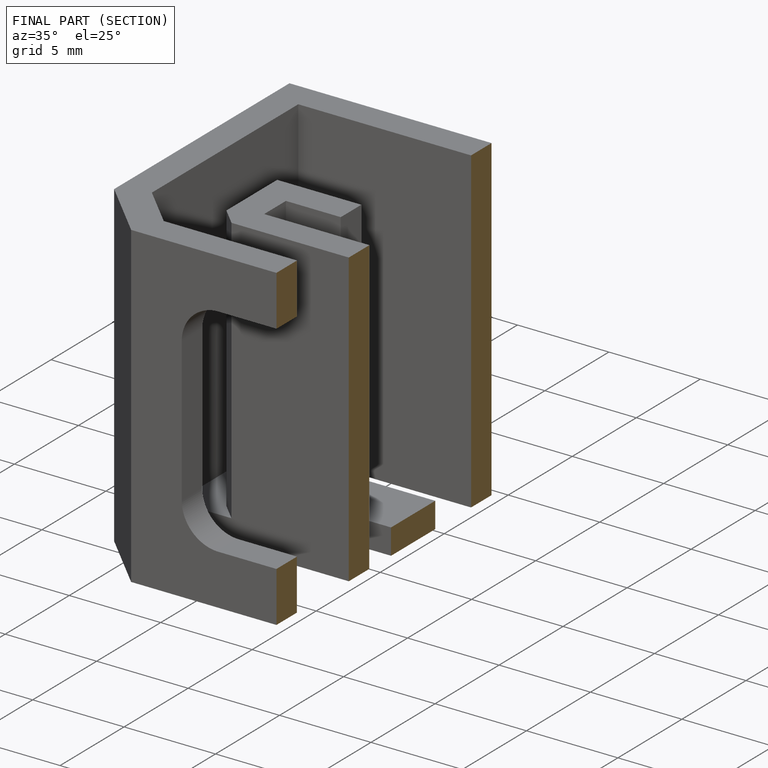
[diagram: finished part — half-section view (interior)]
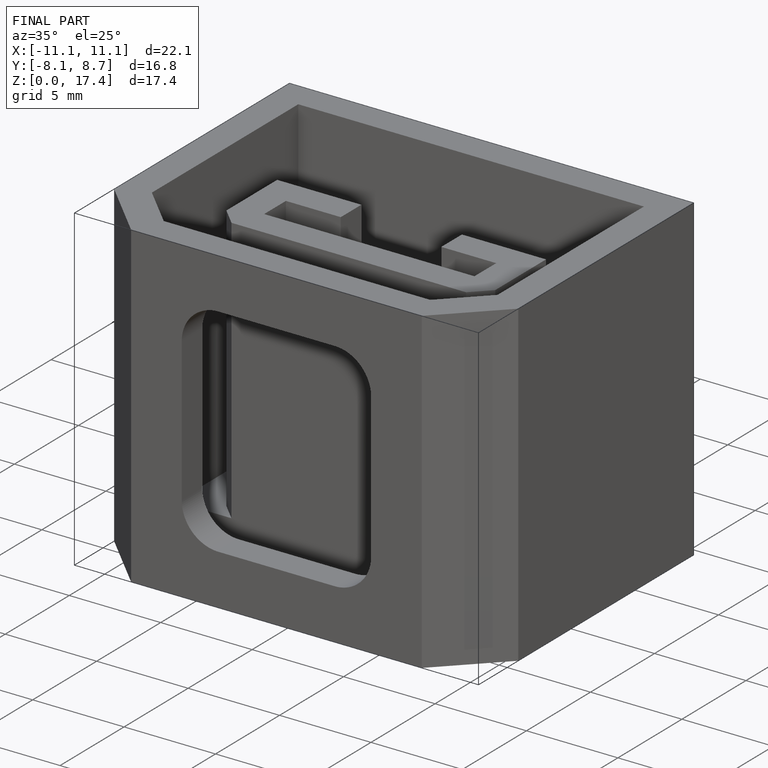
[diagram: finished part — iso view with bounding-box wireframe]
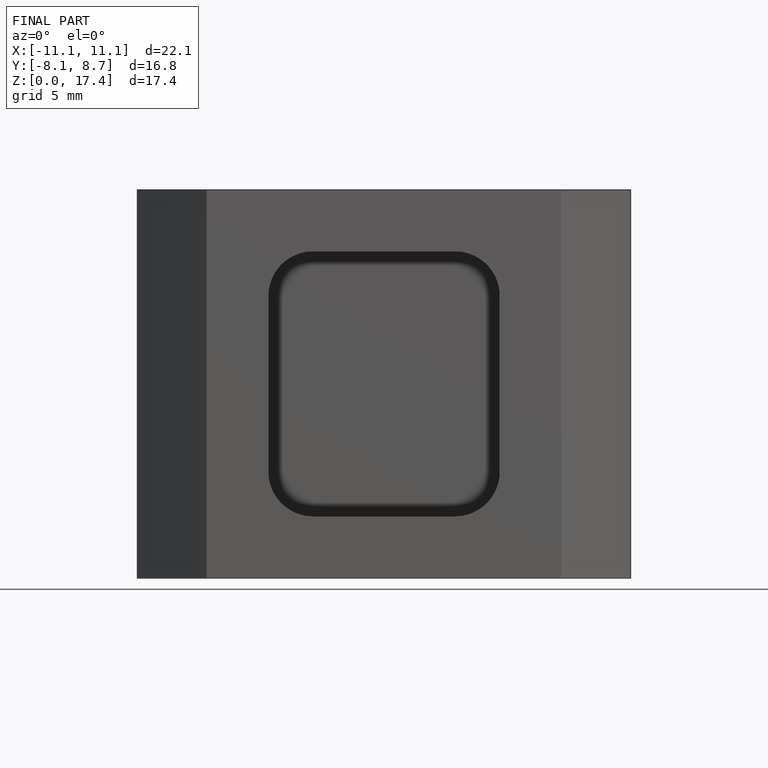
[diagram: finished part — front view with bounding-box wireframe]
